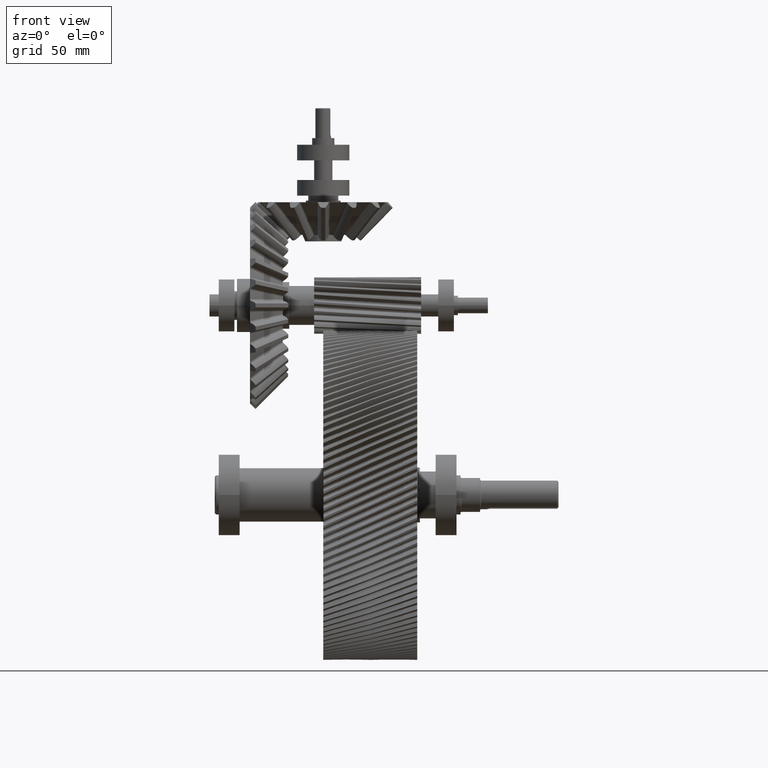
[diagram: clean part render]
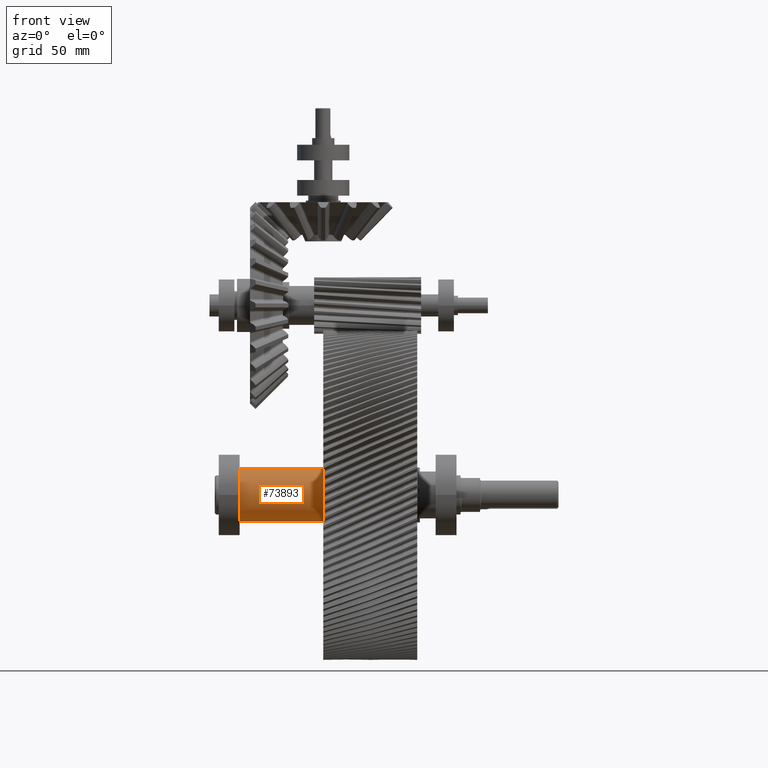
[diagram: same view with one face highlighted and labeled with its STEP entity id]
A machine part, front view. The second image highlights one B-rep face of the part: STEP entity #73893.
In plain terms, the highlighted cylindrical surface (edge-blend (fillet) strip) has radius 20.5 mm, axis along (-1, 0, -0).
Its self-contained STEP definition (entity closure, byte-faithful):
#73162=CARTESIAN_POINT('',(0.E0,0.E0,0.E0));
#73163=DIRECTION('',(0.E0,0.E0,-1.E0));
#73164=DIRECTION('',(1.E0,0.E0,0.E0));
#73165=AXIS2_PLACEMENT_3D('',#73162,#73163,#73164);
#73177=DIRECTION('',(0.E0,0.E0,-1.E0));
#73178=VECTOR('',#73177,6.4E1);
#73179=CARTESIAN_POINT('',(-2.05E1,0.E0,0.E0));
#73180=LINE('',#73179,#73178);
#73181=DIRECTION('',(0.E0,0.E0,-1.E0));
#73182=VECTOR('',#73181,6.4E1);
#73183=CARTESIAN_POINT('',(2.05E1,0.E0,0.E0));
#73184=LINE('',#73183,#73182);
#73190=CARTESIAN_POINT('',(0.E0,0.E0,-6.4E1));
#73191=DIRECTION('',(0.E0,0.E0,-1.E0));
#73192=DIRECTION('',(1.E0,0.E0,0.E0));
#73193=AXIS2_PLACEMENT_3D('',#73190,#73191,#73192);
#73521=CARTESIAN_POINT('',(-2.05E1,0.E0,0.E0));
#73522=CARTESIAN_POINT('',(2.05E1,0.E0,0.E0));
#73523=VERTEX_POINT('',#73521);
#73524=VERTEX_POINT('',#73522);
#73525=CARTESIAN_POINT('',(-2.05E1,0.E0,-6.4E1));
#73526=CARTESIAN_POINT('',(2.05E1,0.E0,-6.4E1));
#73527=VERTEX_POINT('',#73525);
#73528=VERTEX_POINT('',#73526);
#73881=CARTESIAN_POINT('',(0.E0,0.E0,0.E0));
#73882=DIRECTION('',(0.E0,0.E0,-1.E0));
#73883=DIRECTION('',(-1.E0,0.E0,0.E0));
#73884=AXIS2_PLACEMENT_3D('',#73881,#73882,#73883);
#73885=CYLINDRICAL_SURFACE('',#73884,2.05E1);
#73886=ORIENTED_EDGE('',*,*,#73857,.F.);
#73887=ORIENTED_EDGE('',*,*,#73876,.T.);
#73889=ORIENTED_EDGE('',*,*,#73888,.T.);
#73890=ORIENTED_EDGE('',*,*,#73872,.F.);
#73891=EDGE_LOOP('',(#73886,#73887,#73889,#73890));
#73892=FACE_OUTER_BOUND('',#73891,.F.);
#73893=ADVANCED_FACE('',(#73892),#73885,.T.);
#73166=CIRCLE('',#73165,2.05E1);
#73194=CIRCLE('',#73193,2.05E1);
#73857=EDGE_CURVE('',#73524,#73523,#73166,.T.);
#73872=EDGE_CURVE('',#73523,#73527,#73180,.T.);
#73876=EDGE_CURVE('',#73524,#73528,#73184,.T.);
#73888=EDGE_CURVE('',#73528,#73527,#73194,.T.);